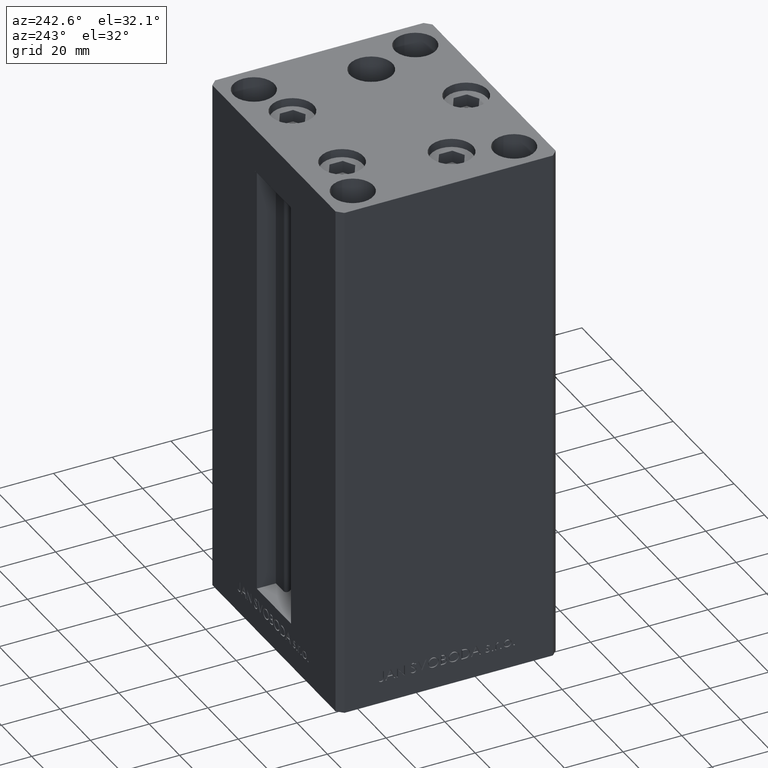
[diagram: clean part render]
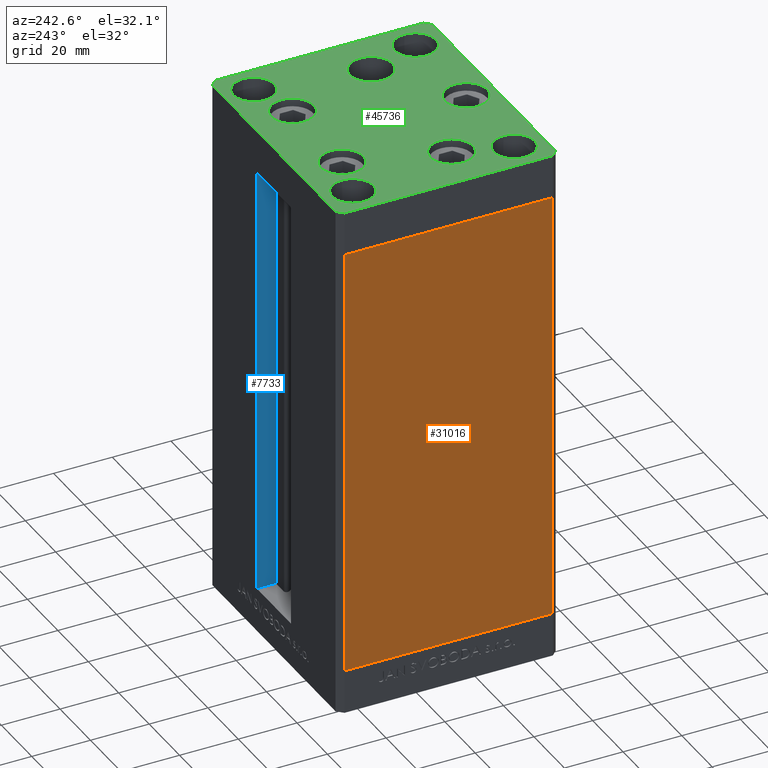
[diagram: same view with three faces highlighted in distinct colors, each labeled with its STEP entity id]
A machine part, auxiliary view with three faces highlighted in distinct colors.
Their STEP definitions:

[orange] entity #31016 — the highlighted planar face has unit normal (1, 0, 0).
#121 = DIRECTION ( 'NONE',  ( -2.931927001650941360E-16, 1.000000000000000000, 0.000000000000000000 ) ) ;
#1690 = CARTESIAN_POINT ( 'NONE',  ( -42.49999999999998579, -35.50000000000000711, 148.5000000000000000 ) ) ;
#7542 = FACE_OUTER_BOUND ( 'NONE', #40808, .T. ) ;
#8469 = DIRECTION ( 'NONE',  ( 2.931927001650941360E-16, -1.000000000000000000, 0.000000000000000000 ) ) ;
#10078 = EDGE_CURVE ( 'NONE', #33810, #10118, #12153, .T. ) ;
#10118 = VERTEX_POINT ( 'NONE', #30445 ) ;
#10424 = EDGE_CURVE ( 'NONE', #10118, #32104, #20489, .T. ) ;
#11968 = LINE ( 'NONE', #15923, #17958 ) ;
#12153 = LINE ( 'NONE', #41362, #42674 ) ;
#12824 = DIRECTION ( 'NONE',  ( -0.000000000000000000, -0.000000000000000000, -1.000000000000000000 ) ) ;
#13434 = VERTEX_POINT ( 'NONE', #33431 ) ;
#15923 = CARTESIAN_POINT ( 'NONE',  ( -42.50000000000000711, 35.50000000000001421, 148.5000000000000000 ) ) ;
#17043 = ORIENTED_EDGE ( 'NONE', *, *, #42426, .T. ) ;
#17958 = VECTOR ( 'NONE', #33985, 1000.000000000000000 ) ;
#19348 = LINE ( 'NONE', #34450, #30331 ) ;
#20489 = LINE ( 'NONE', #1690, #32424 ) ;
#21894 = DIRECTION ( 'NONE',  ( 1.000000000000000000, 2.931927001650941360E-16, -0.000000000000000000 ) ) ;
#24419 = EDGE_CURVE ( 'NONE', #13434, #32104, #19348, .T. ) ;
#26099 = PLANE ( 'NONE',  #30558 ) ;
#28651 = CARTESIAN_POINT ( 'NONE',  ( -42.50000000000000711, 35.50000000000001421, 148.5000000000000000 ) ) ;
#29797 = ORIENTED_EDGE ( 'NONE', *, *, #10078, .F. ) ;
#30331 = VECTOR ( 'NONE', #8469, 1000.000000000000000 ) ;
#30445 = CARTESIAN_POINT ( 'NONE',  ( -42.49999999999998579, -35.50000000000000711, 148.5000000000000000 ) ) ;
#30558 = AXIS2_PLACEMENT_3D ( 'NONE', #48383, #21894, #121 ) ;
#31016 = ADVANCED_FACE ( 'NONE', ( #7542 ), #26099, .F. ) ;
#31799 = CARTESIAN_POINT ( 'NONE',  ( -42.49999999999998579, -35.50000000000000711, 0.000000000000000000 ) ) ;
#32104 = VERTEX_POINT ( 'NONE', #31799 ) ;
#32424 = VECTOR ( 'NONE', #12824, 1000.000000000000000 ) ;
#33431 = CARTESIAN_POINT ( 'NONE',  ( -42.50000000000000711, 35.50000000000001421, 0.000000000000000000 ) ) ;
#33810 = VERTEX_POINT ( 'NONE', #28651 ) ;
#33829 = ORIENTED_EDGE ( 'NONE', *, *, #24419, .T. ) ;
#33985 = DIRECTION ( 'NONE',  ( -0.000000000000000000, -0.000000000000000000, -1.000000000000000000 ) ) ;
#34450 = CARTESIAN_POINT ( 'NONE',  ( -42.50000000000000711, 35.50000000000001421, 0.000000000000000000 ) ) ;
#36643 = ORIENTED_EDGE ( 'NONE', *, *, #10424, .F. ) ;
#40808 = EDGE_LOOP ( 'NONE', ( #33829, #36643, #29797, #17043 ) ) ;
#41362 = CARTESIAN_POINT ( 'NONE',  ( -42.50000000000000711, 35.50000000000001421, 148.5000000000000000 ) ) ;
#42426 = EDGE_CURVE ( 'NONE', #33810, #13434, #11968, .T. ) ;
#42674 = VECTOR ( 'NONE', #45795, 1000.000000000000000 ) ;
#45795 = DIRECTION ( 'NONE',  ( 2.931927001650941360E-16, -1.000000000000000000, 0.000000000000000000 ) ) ;
#48383 = CARTESIAN_POINT ( 'NONE',  ( -42.50000000000000711, 35.50000000000001421, 148.5000000000000000 ) ) ;

[blue] entity #7733 — the highlighted planar face has unit normal (1, 0, 0).
#104 = ORIENTED_EDGE ( 'NONE', *, *, #30881, .F. ) ;
#425 = DIRECTION ( 'NONE',  ( -0.000000000000000000, -0.000000000000000000, 1.000000000000000000 ) ) ;
#4430 = CARTESIAN_POINT ( 'NONE',  ( 11.25000000000000000, 0.000000000000000000, 148.5000000000000000 ) ) ;
#4640 = LINE ( 'NONE', #34809, #23423 ) ;
#5239 = EDGE_LOOP ( 'NONE', ( #104, #39932, #25059, #8016 ) ) ;
#7241 = CARTESIAN_POINT ( 'NONE',  ( 11.25000000000000000, 30.99999999999999289, 0.000000000000000000 ) ) ;
#7733 = ADVANCED_FACE ( 'NONE', ( #30472 ), #40900, .F. ) ;
#8016 = ORIENTED_EDGE ( 'NONE', *, *, #27533, .F. ) ;
#11362 = LINE ( 'NONE', #37843, #43307 ) ;
#12289 = LINE ( 'NONE', #24154, #34602 ) ;
#12572 = AXIS2_PLACEMENT_3D ( 'NONE', #7241, #22322, #41880 ) ;
#13203 = CARTESIAN_POINT ( 'NONE',  ( 11.25000000000000000, 30.99999999999999289, 0.000000000000000000 ) ) ;
#15137 = VERTEX_POINT ( 'NONE', #25672 ) ;
#18842 = VERTEX_POINT ( 'NONE', #23873 ) ;
#22322 = DIRECTION ( 'NONE',  ( 1.000000000000000000, -0.000000000000000000, 0.000000000000000000 ) ) ;
#22981 = DIRECTION ( 'NONE',  ( 0.000000000000000000, 1.000000000000000000, 0.000000000000000000 ) ) ;
#23423 = VECTOR ( 'NONE', #425, 1000.000000000000000 ) ;
#23706 = DIRECTION ( 'NONE',  ( -0.000000000000000000, -1.000000000000000000, 0.000000000000000000 ) ) ;
#23873 = CARTESIAN_POINT ( 'NONE',  ( 11.24999999999999289, 37.50000000000000000, 148.5000000000000000 ) ) ;
#24154 = CARTESIAN_POINT ( 'NONE',  ( 11.25000000000000000, 30.99999999999999289, 0.000000000000000000 ) ) ;
#24287 = CARTESIAN_POINT ( 'NONE',  ( 11.25000000000000000, 37.50000000000000000, 0.000000000000000000 ) ) ;
#25059 = ORIENTED_EDGE ( 'NONE', *, *, #34016, .T. ) ;
#25672 = CARTESIAN_POINT ( 'NONE',  ( 11.25000000000000000, 30.99999999999999289, 148.5000000000000000 ) ) ;
#27533 = EDGE_CURVE ( 'NONE', #18842, #15137, #46967, .T. ) ;
#30472 = FACE_OUTER_BOUND ( 'NONE', #5239, .T. ) ;
#30881 = EDGE_CURVE ( 'NONE', #31603, #18842, #4640, .T. ) ;
#31603 = VERTEX_POINT ( 'NONE', #24287 ) ;
#34016 = EDGE_CURVE ( 'NONE', #48550, #15137, #12289, .T. ) ;
#34602 = VECTOR ( 'NONE', #39271, 1000.000000000000000 ) ;
#34809 = CARTESIAN_POINT ( 'NONE',  ( 11.25000000000000000, 37.50000000000000000, 0.000000000000000000 ) ) ;
#37843 = CARTESIAN_POINT ( 'NONE',  ( 11.25000000000000000, 30.99999999999999289, 0.000000000000000000 ) ) ;
#39271 = DIRECTION ( 'NONE',  ( -0.000000000000000000, -0.000000000000000000, 1.000000000000000000 ) ) ;
#39932 = ORIENTED_EDGE ( 'NONE', *, *, #43986, .F. ) ;
#40900 = PLANE ( 'NONE',  #12572 ) ;
#41880 = DIRECTION ( 'NONE',  ( 0.000000000000000000, 0.000000000000000000, -1.000000000000000000 ) ) ;
#43307 = VECTOR ( 'NONE', #22981, 1000.000000000000000 ) ;
#43986 = EDGE_CURVE ( 'NONE', #48550, #31603, #11362, .T. ) ;
#45462 = VECTOR ( 'NONE', #23706, 1000.000000000000000 ) ;
#46967 = LINE ( 'NONE', #4430, #45462 ) ;
#48550 = VERTEX_POINT ( 'NONE', #13203 ) ;

[green] entity #45736 — the highlighted planar face has unit normal (0, 0, 1).
#52 = CARTESIAN_POINT ( 'NONE',  ( 23.57291334290542295, 22.75000000000000000, 0.000000000000000000 ) ) ;
#96 = CARTESIAN_POINT ( 'NONE',  ( -33.64865316429776954, -9.333333333333337478, 0.000000000000000000 ) ) ;
#433 = VERTEX_POINT ( 'NONE', #52 ) ;
#818 = CARTESIAN_POINT ( 'NONE',  ( 42.49999999999992895, 35.50000000000000000, 0.000000000000000000 ) ) ;
#1100 = ORIENTED_EDGE ( 'NONE', *, *, #21618, .F. ) ;
#1345 = EDGE_LOOP ( 'NONE', ( #32733, #46235 ) ) ;
#1387 = CARTESIAN_POINT ( 'NONE',  ( -7.249999999999997335, -28.00000000000000000, 0.000000000000000000 ) ) ;
#1442 = EDGE_LOOP ( 'NONE', ( #3921, #47361 ) ) ;
#1490 = DIRECTION ( 'NONE',  ( 9.773090005503140331E-17, -1.000000000000000000, 0.000000000000000000 ) ) ;
#1618 = CARTESIAN_POINT ( 'NONE',  ( 40.50000000000000000, -37.50000000000000711, 0.000000000000000000 ) ) ;
#1846 = ORIENTED_EDGE ( 'NONE', *, *, #2127, .T. ) ;
#1863 = DIRECTION ( 'NONE',  ( 0.7071067811865474617, 0.7071067811865474617, 0.000000000000000000 ) ) ;
#1955 = CARTESIAN_POINT ( 'NONE',  ( -25.50000000000000355, -27.49999999999999645, 0.000000000000000000 ) ) ;
#1976 = VERTEX_POINT ( 'NONE', #8794 ) ;
#2127 = EDGE_CURVE ( 'NONE', #29869, #20315, #19607, .T. ) ;
#2562 = CARTESIAN_POINT ( 'NONE',  ( -19.14865316429777309, -9.333333333333335702, 0.000000000000000000 ) ) ;
#2785 = CARTESIAN_POINT ( 'NONE',  ( -40.50000000000000711, 37.49999999999997868, 0.000000000000000000 ) ) ;
#2908 = LINE ( 'NONE', #5713, #6378 ) ;
#3187 = CARTESIAN_POINT ( 'NONE',  ( -26.39865316429776954, -9.333333333333337478, 0.000000000000000000 ) ) ;
#3566 = EDGE_CURVE ( 'NONE', #41440, #37808, #38071, .T. ) ;
#3593 = CARTESIAN_POINT ( 'NONE',  ( 32.50000000000000000, -27.49999999999999645, 0.000000000000000000 ) ) ;
#3789 = VERTEX_POINT ( 'NONE', #34836 ) ;
#3921 = ORIENTED_EDGE ( 'NONE', *, *, #18287, .T. ) ;
#4007 = ORIENTED_EDGE ( 'NONE', *, *, #46709, .T. ) ;
#4196 = DIRECTION ( 'NONE',  ( 0.000000000000000000, -0.000000000000000000, -1.000000000000000000 ) ) ;
#4478 = AXIS2_PLACEMENT_3D ( 'NONE', #5638, #17007, #43255 ) ;
#4503 = DIRECTION ( 'NONE',  ( 1.000000000000000000, 0.000000000000000000, 0.000000000000000000 ) ) ;
#4653 = CARTESIAN_POINT ( 'NONE',  ( 40.49999999999991473, 37.50000000000000711, 0.000000000000000000 ) ) ;
#4680 = CARTESIAN_POINT ( 'NONE',  ( -32.50000000000000000, -27.49999999999999645, 0.000000000000000000 ) ) ;
#4909 = AXIS2_PLACEMENT_3D ( 'NONE', #31922, #32898, #24975 ) ;
#4925 = DIRECTION ( 'NONE',  ( 0.000000000000000000, 0.000000000000000000, 1.000000000000000000 ) ) ;
#5170 = EDGE_LOOP ( 'NONE', ( #31169, #41518, #43903, #27754, #1846, #11869, #47236, #20650 ) ) ;
#5447 = EDGE_CURVE ( 'NONE', #25691, #16223, #2908, .T. ) ;
#5597 = EDGE_CURVE ( 'NONE', #40842, #23346, #16848, .T. ) ;
#5638 = CARTESIAN_POINT ( 'NONE',  ( 3.429011037612589276E-15, -28.00000000000000000, 0.000000000000000000 ) ) ;
#5713 = CARTESIAN_POINT ( 'NONE',  ( -40.49999999999999289, -37.50000000000002132, 0.000000000000000000 ) ) ;
#6378 = VECTOR ( 'NONE', #31701, 1000.000000000000000 ) ;
#6503 = ORIENTED_EDGE ( 'NONE', *, *, #20552, .T. ) ;
#6953 = VERTEX_POINT ( 'NONE', #16796 ) ;
#7226 = CIRCLE ( 'NONE', #32531, 6.999999999999999112 ) ;
#7383 = ORIENTED_EDGE ( 'NONE', *, *, #13012, .T. ) ;
#8258 = ORIENTED_EDGE ( 'NONE', *, *, #14146, .F. ) ;
#8442 = CARTESIAN_POINT ( 'NONE',  ( 32.50000000000000000, 27.49999999999999645, 0.000000000000000000 ) ) ;
#8445 = FACE_BOUND ( 'NONE', #38069, .T. ) ;
#8453 = AXIS2_PLACEMENT_3D ( 'NONE', #20217, #31609, #34822 ) ;
#8606 = CIRCLE ( 'NONE', #38637, 7.249999999999999112 ) ;
#8694 = FACE_BOUND ( 'NONE', #16854, .T. ) ;
#8794 = CARTESIAN_POINT ( 'NONE',  ( 39.50000000000000000, -27.49999999999999645, 0.000000000000000000 ) ) ;
#8849 = CARTESIAN_POINT ( 'NONE',  ( 32.50000000000000000, 27.49999999999999645, 0.000000000000000000 ) ) ;
#9289 = DIRECTION ( 'NONE',  ( 1.000000000000000000, 0.000000000000000000, 0.000000000000000000 ) ) ;
#9685 = DIRECTION ( 'NONE',  ( 1.000000000000000000, 0.000000000000000000, 0.000000000000000000 ) ) ;
#9704 = AXIS2_PLACEMENT_3D ( 'NONE', #23632, #45910, #19183 ) ;
#9979 = EDGE_CURVE ( 'NONE', #20315, #40842, #10925, .T. ) ;
#10794 = AXIS2_PLACEMENT_3D ( 'NONE', #16164, #31262, #46355 ) ;
#10925 = LINE ( 'NONE', #25042, #19757 ) ;
#11364 = DIRECTION ( 'NONE',  ( 1.000000000000000000, 0.000000000000000000, 0.000000000000000000 ) ) ;
#11869 = ORIENTED_EDGE ( 'NONE', *, *, #9979, .T. ) ;
#11923 = CIRCLE ( 'NONE', #30892, 7.250000000000000000 ) ;
#12225 = CARTESIAN_POINT ( 'NONE',  ( 42.50000000000000711, -35.50000000000000000, 0.000000000000000000 ) ) ;
#12284 = VECTOR ( 'NONE', #1490, 1000.000000000000000 ) ;
#12936 = EDGE_CURVE ( 'NONE', #42440, #48497, #18238, .T. ) ;
#13012 = EDGE_CURVE ( 'NONE', #23693, #25801, #11923, .T. ) ;
#13713 = EDGE_LOOP ( 'NONE', ( #44272, #26835 ) ) ;
#13869 = DIRECTION ( 'NONE',  ( 0.000000000000000000, -0.000000000000000000, -1.000000000000000000 ) ) ;
#14082 = DIRECTION ( 'NONE',  ( 0.000000000000000000, -0.000000000000000000, -1.000000000000000000 ) ) ;
#14146 = EDGE_CURVE ( 'NONE', #23231, #30670, #7226, .T. ) ;
#14180 = VERTEX_POINT ( 'NONE', #45252 ) ;
#14343 = CARTESIAN_POINT ( 'NONE',  ( 26.39865316429776954, -9.333333333333330373, 0.000000000000000000 ) ) ;
#14489 = CARTESIAN_POINT ( 'NONE',  ( 42.50000000000000711, -35.50000000000000000, 0.000000000000000000 ) ) ;
#14499 = CIRCLE ( 'NONE', #17675, 7.249999999999999112 ) ;
#14864 = EDGE_CURVE ( 'NONE', #34011, #25691, #24578, .T. ) ;
#15084 = CARTESIAN_POINT ( 'NONE',  ( 40.50000000000000000, -37.50000000000000711, 0.000000000000000000 ) ) ;
#15241 = CARTESIAN_POINT ( 'NONE',  ( -23.57291334290543006, 22.74999999999999645, 0.000000000000000000 ) ) ;
#15281 = DIRECTION ( 'NONE',  ( 0.000000000000000000, -0.000000000000000000, -1.000000000000000000 ) ) ;
#15393 = VERTEX_POINT ( 'NONE', #27137 ) ;
#15454 = CARTESIAN_POINT ( 'NONE',  ( -39.50000000000000000, 27.50000000000000355, 0.000000000000000000 ) ) ;
#15665 = CARTESIAN_POINT ( 'NONE',  ( -25.50000000000000355, 27.50000000000000355, 0.000000000000000000 ) ) ;
#15832 = CARTESIAN_POINT ( 'NONE',  ( -42.50000000000000711, 35.49999999999997158, 0.000000000000000000 ) ) ;
#16164 = CARTESIAN_POINT ( 'NONE',  ( 32.50000000000000000, -27.49999999999999645, 0.000000000000000000 ) ) ;
#16199 = DIRECTION ( 'NONE',  ( -1.172770800660376741E-15, 1.000000000000000000, 0.000000000000000000 ) ) ;
#16223 = VERTEX_POINT ( 'NONE', #15084 ) ;
#16488 = CARTESIAN_POINT ( 'NONE',  ( -42.50000000000000000, -35.50000000000000711, 0.000000000000000000 ) ) ;
#16796 = CARTESIAN_POINT ( 'NONE',  ( 39.50000000000000000, 27.49999999999999645, 0.000000000000000000 ) ) ;
#16804 = AXIS2_PLACEMENT_3D ( 'NONE', #34057, #23661, #34558 ) ;
#16848 = LINE ( 'NONE', #27492, #44345 ) ;
#16854 = EDGE_LOOP ( 'NONE', ( #20633, #7383 ) ) ;
#16918 = EDGE_CURVE ( 'NONE', #48497, #42440, #42103, .T. ) ;
#17007 = DIRECTION ( 'NONE',  ( 0.000000000000000000, -0.000000000000000000, -1.000000000000000000 ) ) ;
#17636 = CIRCLE ( 'NONE', #36613, 6.999999999999999112 ) ;
#17675 = AXIS2_PLACEMENT_3D ( 'NONE', #14343, #13869, #32918 ) ;
#18238 = CIRCLE ( 'NONE', #26929, 7.249999999999999112 ) ;
#18287 = EDGE_CURVE ( 'NONE', #15393, #3789, #22253, .T. ) ;
#18388 = EDGE_LOOP ( 'NONE', ( #45222, #4007 ) ) ;
#18592 = DIRECTION ( 'NONE',  ( 0.000000000000000000, 0.000000000000000000, 1.000000000000000000 ) ) ;
#18671 = DIRECTION ( 'NONE',  ( 0.000000000000000000, 0.000000000000000000, 1.000000000000000000 ) ) ;
#18704 = CARTESIAN_POINT ( 'NONE',  ( -40.49999999999999289, -37.50000000000002132, 0.000000000000000000 ) ) ;
#19183 = DIRECTION ( 'NONE',  ( 1.000000000000000000, 0.000000000000000000, 0.000000000000000000 ) ) ;
#19341 = DIRECTION ( 'NONE',  ( 1.000000000000000000, 0.000000000000000000, 0.000000000000000000 ) ) ;
#19501 = CIRCLE ( 'NONE', #47184, 6.999999999999999112 ) ;
#19607 = LINE ( 'NONE', #818, #45154 ) ;
#19757 = VECTOR ( 'NONE', #25774, 1000.000000000000000 ) ;
#20217 = CARTESIAN_POINT ( 'NONE',  ( -32.50000000000000000, 27.50000000000000355, 0.000000000000000000 ) ) ;
#20315 = VERTEX_POINT ( 'NONE', #4653 ) ;
#20419 = DIRECTION ( 'NONE',  ( 0.000000000000000000, 0.000000000000000000, 1.000000000000000000 ) ) ;
#20423 = EDGE_CURVE ( 'NONE', #6953, #42179, #28667, .T. ) ;
#20471 = ORIENTED_EDGE ( 'NONE', *, *, #16918, .T. ) ;
#20552 = EDGE_CURVE ( 'NONE', #37808, #41440, #48410, .T. ) ;
#20633 = ORIENTED_EDGE ( 'NONE', *, *, #29528, .T. ) ;
#20650 = ORIENTED_EDGE ( 'NONE', *, *, #37679, .T. ) ;
#20843 = CARTESIAN_POINT ( 'NONE',  ( 42.49999999999992895, 35.50000000000000000, 0.000000000000000000 ) ) ;
#21618 = EDGE_CURVE ( 'NONE', #21725, #23989, #17636, .T. ) ;
#21725 = VERTEX_POINT ( 'NONE', #15665 ) ;
#22253 = CIRCLE ( 'NONE', #39785, 7.249999999999999112 ) ;
#22285 = EDGE_CURVE ( 'NONE', #30670, #23231, #47671, .T. ) ;
#22314 = EDGE_CURVE ( 'NONE', #3789, #15393, #14499, .T. ) ;
#22702 = DIRECTION ( 'NONE',  ( 1.000000000000000000, 0.000000000000000000, 0.000000000000000000 ) ) ;
#23231 = VERTEX_POINT ( 'NONE', #34749 ) ;
#23303 = DIRECTION ( 'NONE',  ( 0.000000000000000000, -0.000000000000000000, -1.000000000000000000 ) ) ;
#23346 = VERTEX_POINT ( 'NONE', #24342 ) ;
#23529 = FACE_OUTER_BOUND ( 'NONE', #5170, .T. ) ;
#23632 = CARTESIAN_POINT ( 'NONE',  ( -16.32291334290543006, 22.74999999999999645, 0.000000000000000000 ) ) ;
#23661 = DIRECTION ( 'NONE',  ( 0.000000000000000000, -0.000000000000000000, -1.000000000000000000 ) ) ;
#23693 = VERTEX_POINT ( 'NONE', #33827 ) ;
#23775 = FACE_BOUND ( 'NONE', #36444, .T. ) ;
#23989 = VERTEX_POINT ( 'NONE', #15454 ) ;
#24090 = DIRECTION ( 'NONE',  ( 0.7071067811865463515, -0.7071067811865487940, 0.000000000000000000 ) ) ;
#24115 = EDGE_CURVE ( 'NONE', #34218, #29869, #48388, .T. ) ;
#24274 = CIRCLE ( 'NONE', #8453, 6.999999999999999112 ) ;
#24342 = CARTESIAN_POINT ( 'NONE',  ( -42.50000000000000711, 35.49999999999997158, 0.000000000000000000 ) ) ;
#24578 = LINE ( 'NONE', #39694, #45185 ) ;
#24760 = DIRECTION ( 'NONE',  ( 1.000000000000000000, 0.000000000000000000, 0.000000000000000000 ) ) ;
#24975 = DIRECTION ( 'NONE',  ( 1.000000000000000000, 0.000000000000000000, 0.000000000000000000 ) ) ;
#25042 = CARTESIAN_POINT ( 'NONE',  ( 40.49999999999991473, 37.50000000000000711, 0.000000000000000000 ) ) ;
#25126 = EDGE_CURVE ( 'NONE', #16223, #34218, #39238, .T. ) ;
#25456 = DIRECTION ( 'NONE',  ( 1.000000000000000000, 0.000000000000000000, 0.000000000000000000 ) ) ;
#25691 = VERTEX_POINT ( 'NONE', #18704 ) ;
#25774 = DIRECTION ( 'NONE',  ( -1.000000000000000000, -3.426614273534436165E-16, 0.000000000000000000 ) ) ;
#25801 = VERTEX_POINT ( 'NONE', #1387 ) ;
#26318 = AXIS2_PLACEMENT_3D ( 'NONE', #33158, #40107, #24760 ) ;
#26445 = CARTESIAN_POINT ( 'NONE',  ( 16.32291334290542295, 22.75000000000000000, 0.000000000000000000 ) ) ;
#26559 = CIRCLE ( 'NONE', #4478, 7.250000000000000000 ) ;
#26835 = ORIENTED_EDGE ( 'NONE', *, *, #42694, .F. ) ;
#26929 = AXIS2_PLACEMENT_3D ( 'NONE', #3187, #14082, #25456 ) ;
#27137 = CARTESIAN_POINT ( 'NONE',  ( 19.14865316429777309, -9.333333333333330373, 0.000000000000000000 ) ) ;
#27492 = CARTESIAN_POINT ( 'NONE',  ( -40.50000000000000711, 37.49999999999997868, 0.000000000000000000 ) ) ;
#27493 = FACE_BOUND ( 'NONE', #38551, .T. ) ;
#27754 = ORIENTED_EDGE ( 'NONE', *, *, #24115, .T. ) ;
#28191 = ORIENTED_EDGE ( 'NONE', *, *, #12936, .T. ) ;
#28237 = CARTESIAN_POINT ( 'NONE',  ( 16.32291334290542295, 22.75000000000000000, 0.000000000000000000 ) ) ;
#28247 = VERTEX_POINT ( 'NONE', #43356 ) ;
#28327 = CARTESIAN_POINT ( 'NONE',  ( 3.429011037612589276E-15, -28.00000000000000000, 0.000000000000000000 ) ) ;
#28479 = DIRECTION ( 'NONE',  ( 0.000000000000000000, -0.000000000000000000, -1.000000000000000000 ) ) ;
#28667 = CIRCLE ( 'NONE', #42098, 6.999999999999999112 ) ;
#28817 = AXIS2_PLACEMENT_3D ( 'NONE', #28237, #28479, #9685 ) ;
#29528 = EDGE_CURVE ( 'NONE', #25801, #23693, #26559, .T. ) ;
#29869 = VERTEX_POINT ( 'NONE', #20843 ) ;
#30151 = DIRECTION ( 'NONE',  ( 1.000000000000000000, 0.000000000000000000, 0.000000000000000000 ) ) ;
#30670 = VERTEX_POINT ( 'NONE', #1955 ) ;
#30706 = FACE_BOUND ( 'NONE', #1345, .T. ) ;
#30892 = AXIS2_PLACEMENT_3D ( 'NONE', #28327, #15281, #22702 ) ;
#30960 = DIRECTION ( 'NONE',  ( -0.000000000000000000, 0.000000000000000000, 1.000000000000000000 ) ) ;
#31169 = ORIENTED_EDGE ( 'NONE', *, *, #14864, .T. ) ;
#31262 = DIRECTION ( 'NONE',  ( 0.000000000000000000, 0.000000000000000000, 1.000000000000000000 ) ) ;
#31609 = DIRECTION ( 'NONE',  ( 0.000000000000000000, 0.000000000000000000, 1.000000000000000000 ) ) ;
#31701 = DIRECTION ( 'NONE',  ( 1.000000000000000000, 1.713307136767217096E-16, 0.000000000000000000 ) ) ;
#31705 = EDGE_CURVE ( 'NONE', #23989, #21725, #24274, .T. ) ;
#31922 = CARTESIAN_POINT ( 'NONE',  ( -16.32291334290543006, 22.74999999999999645, 0.000000000000000000 ) ) ;
#32531 = AXIS2_PLACEMENT_3D ( 'NONE', #4680, #4925, #30151 ) ;
#32646 = ORIENTED_EDGE ( 'NONE', *, *, #3566, .T. ) ;
#32733 = ORIENTED_EDGE ( 'NONE', *, *, #40639, .F. ) ;
#32898 = DIRECTION ( 'NONE',  ( 0.000000000000000000, -0.000000000000000000, -1.000000000000000000 ) ) ;
#32918 = DIRECTION ( 'NONE',  ( 1.000000000000000000, 0.000000000000000000, 0.000000000000000000 ) ) ;
#33158 = CARTESIAN_POINT ( 'NONE',  ( -32.50000000000000000, -27.49999999999999645, 0.000000000000000000 ) ) ;
#33529 = VECTOR ( 'NONE', #1863, 1000.000000000000114 ) ;
#33827 = CARTESIAN_POINT ( 'NONE',  ( 7.250000000000003553, -28.00000000000000000, 0.000000000000000000 ) ) ;
#34011 = VERTEX_POINT ( 'NONE', #16488 ) ;
#34057 = CARTESIAN_POINT ( 'NONE',  ( -26.39865316429776954, -9.333333333333337478, 0.000000000000000000 ) ) ;
#34181 = FACE_BOUND ( 'NONE', #1442, .T. ) ;
#34218 = VERTEX_POINT ( 'NONE', #12225 ) ;
#34334 = CARTESIAN_POINT ( 'NONE',  ( -9.072913342905431833, 22.74999999999999645, 0.000000000000000000 ) ) ;
#34558 = DIRECTION ( 'NONE',  ( 1.000000000000000000, 0.000000000000000000, 0.000000000000000000 ) ) ;
#34642 = LINE ( 'NONE', #15832, #12284 ) ;
#34749 = CARTESIAN_POINT ( 'NONE',  ( -39.50000000000000000, -27.49999999999999645, 0.000000000000000000 ) ) ;
#34822 = DIRECTION ( 'NONE',  ( 1.000000000000000000, 0.000000000000000000, 0.000000000000000000 ) ) ;
#34836 = CARTESIAN_POINT ( 'NONE',  ( 33.64865316429776954, -9.333333333333328596, 0.000000000000000000 ) ) ;
#34910 = CARTESIAN_POINT ( 'NONE',  ( 0.000000000000000000, 0.000000000000000000, 0.000000000000000000 ) ) ;
#35040 = EDGE_CURVE ( 'NONE', #28247, #1976, #41460, .T. ) ;
#35269 = CARTESIAN_POINT ( 'NONE',  ( -32.50000000000000000, 27.50000000000000355, 0.000000000000000000 ) ) ;
#35574 = EDGE_CURVE ( 'NONE', #14180, #433, #43024, .T. ) ;
#35709 = ORIENTED_EDGE ( 'NONE', *, *, #22285, .F. ) ;
#36444 = EDGE_LOOP ( 'NONE', ( #28191, #20471 ) ) ;
#36613 = AXIS2_PLACEMENT_3D ( 'NONE', #35269, #20419, #9289 ) ;
#36677 = ORIENTED_EDGE ( 'NONE', *, *, #31705, .F. ) ;
#37579 = CARTESIAN_POINT ( 'NONE',  ( 25.50000000000000355, 27.49999999999999645, 0.000000000000000000 ) ) ;
#37679 = EDGE_CURVE ( 'NONE', #23346, #34011, #34642, .T. ) ;
#37808 = VERTEX_POINT ( 'NONE', #34334 ) ;
#38069 = EDGE_LOOP ( 'NONE', ( #1100, #36677 ) ) ;
#38071 = CIRCLE ( 'NONE', #4909, 7.249999999999999112 ) ;
#38169 = CARTESIAN_POINT ( 'NONE',  ( 26.39865316429776954, -9.333333333333330373, 0.000000000000000000 ) ) ;
#38475 = DIRECTION ( 'NONE',  ( 1.000000000000000000, 0.000000000000000000, 0.000000000000000000 ) ) ;
#38551 = EDGE_LOOP ( 'NONE', ( #35709, #8258 ) ) ;
#38637 = AXIS2_PLACEMENT_3D ( 'NONE', #26445, #4196, #11364 ) ;
#38888 = FACE_BOUND ( 'NONE', #13713, .T. ) ;
#39238 = LINE ( 'NONE', #1618, #33529 ) ;
#39299 = DIRECTION ( 'NONE',  ( 0.000000000000000000, 0.000000000000000000, 1.000000000000000000 ) ) ;
#39694 = CARTESIAN_POINT ( 'NONE',  ( -42.50000000000000000, -35.50000000000000711, 0.000000000000000000 ) ) ;
#39785 = AXIS2_PLACEMENT_3D ( 'NONE', #38169, #23303, #19341 ) ;
#40107 = DIRECTION ( 'NONE',  ( 0.000000000000000000, 0.000000000000000000, 1.000000000000000000 ) ) ;
#40639 = EDGE_CURVE ( 'NONE', #1976, #28247, #40823, .T. ) ;
#40823 = CIRCLE ( 'NONE', #10794, 6.999999999999999112 ) ;
#40842 = VERTEX_POINT ( 'NONE', #2785 ) ;
#41440 = VERTEX_POINT ( 'NONE', #15241 ) ;
#41460 = CIRCLE ( 'NONE', #42239, 6.999999999999999112 ) ;
#41518 = ORIENTED_EDGE ( 'NONE', *, *, #5447, .T. ) ;
#42098 = AXIS2_PLACEMENT_3D ( 'NONE', #8849, #39299, #47189 ) ;
#42103 = CIRCLE ( 'NONE', #16804, 7.249999999999999112 ) ;
#42142 = DIRECTION ( 'NONE',  ( -0.7071067811865474617, 0.7071067811865474617, 0.000000000000000000 ) ) ;
#42179 = VERTEX_POINT ( 'NONE', #37579 ) ;
#42239 = AXIS2_PLACEMENT_3D ( 'NONE', #3593, #18671, #38475 ) ;
#42440 = VERTEX_POINT ( 'NONE', #96 ) ;
#42600 = FACE_BOUND ( 'NONE', #47837, .T. ) ;
#42694 = EDGE_CURVE ( 'NONE', #42179, #6953, #19501, .T. ) ;
#43024 = CIRCLE ( 'NONE', #28817, 7.249999999999999112 ) ;
#43255 = DIRECTION ( 'NONE',  ( 1.000000000000000000, 0.000000000000000000, 0.000000000000000000 ) ) ;
#43356 = CARTESIAN_POINT ( 'NONE',  ( 25.50000000000000355, -27.49999999999999645, 0.000000000000000000 ) ) ;
#43903 = ORIENTED_EDGE ( 'NONE', *, *, #25126, .T. ) ;
#44272 = ORIENTED_EDGE ( 'NONE', *, *, #20423, .F. ) ;
#44345 = VECTOR ( 'NONE', #46300, 1000.000000000000000 ) ;
#45154 = VECTOR ( 'NONE', #42142, 1000.000000000000114 ) ;
#45185 = VECTOR ( 'NONE', #24090, 1000.000000000000000 ) ;
#45222 = ORIENTED_EDGE ( 'NONE', *, *, #35574, .T. ) ;
#45252 = CARTESIAN_POINT ( 'NONE',  ( 9.072913342905424727, 22.75000000000000000, 0.000000000000000000 ) ) ;
#45312 = DIRECTION ( 'NONE',  ( 1.000000000000000000, 0.000000000000000000, 0.000000000000000000 ) ) ;
#45720 = AXIS2_PLACEMENT_3D ( 'NONE', #34910, #30960, #4503 ) ;
#45736 = ADVANCED_FACE ( 'NONE', ( #42600, #46059, #34181, #8694, #23775, #30706, #27493, #8445, #38888, #23529 ), #46301, .T. ) ;
#45910 = DIRECTION ( 'NONE',  ( 0.000000000000000000, -0.000000000000000000, -1.000000000000000000 ) ) ;
#46059 = FACE_BOUND ( 'NONE', #18388, .T. ) ;
#46235 = ORIENTED_EDGE ( 'NONE', *, *, #35040, .F. ) ;
#46300 = DIRECTION ( 'NONE',  ( -0.7071067811865463515, -0.7071067811865487940, 0.000000000000000000 ) ) ;
#46301 = PLANE ( 'NONE',  #45720 ) ;
#46355 = DIRECTION ( 'NONE',  ( 1.000000000000000000, 0.000000000000000000, 0.000000000000000000 ) ) ;
#46709 = EDGE_CURVE ( 'NONE', #433, #14180, #8606, .T. ) ;
#47184 = AXIS2_PLACEMENT_3D ( 'NONE', #8442, #18592, #45312 ) ;
#47189 = DIRECTION ( 'NONE',  ( 1.000000000000000000, 0.000000000000000000, 0.000000000000000000 ) ) ;
#47236 = ORIENTED_EDGE ( 'NONE', *, *, #5597, .T. ) ;
#47361 = ORIENTED_EDGE ( 'NONE', *, *, #22314, .T. ) ;
#47671 = CIRCLE ( 'NONE', #26318, 6.999999999999999112 ) ;
#47837 = EDGE_LOOP ( 'NONE', ( #32646, #6503 ) ) ;
#48388 = LINE ( 'NONE', #14489, #48507 ) ;
#48410 = CIRCLE ( 'NONE', #9704, 7.249999999999999112 ) ;
#48497 = VERTEX_POINT ( 'NONE', #2562 ) ;
#48507 = VECTOR ( 'NONE', #16199, 1000.000000000000000 ) ;